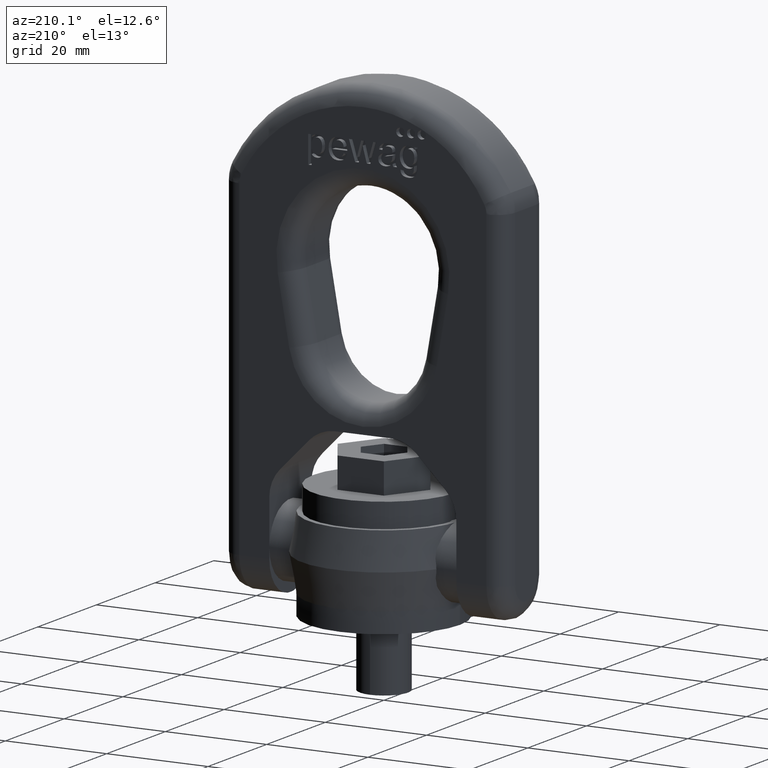
[diagram: clean part render]
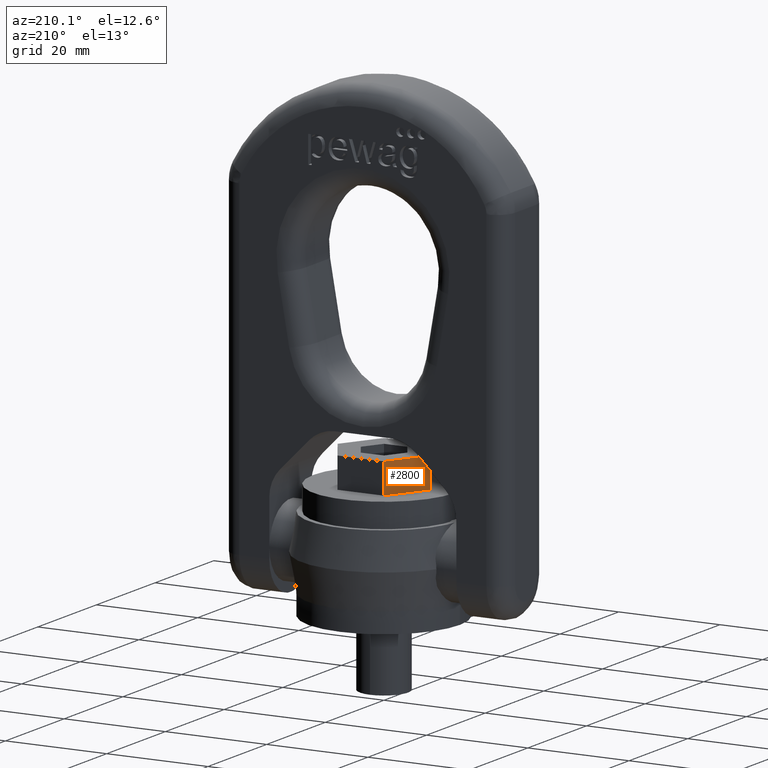
[diagram: same view with one face highlighted and labeled with its STEP entity id]
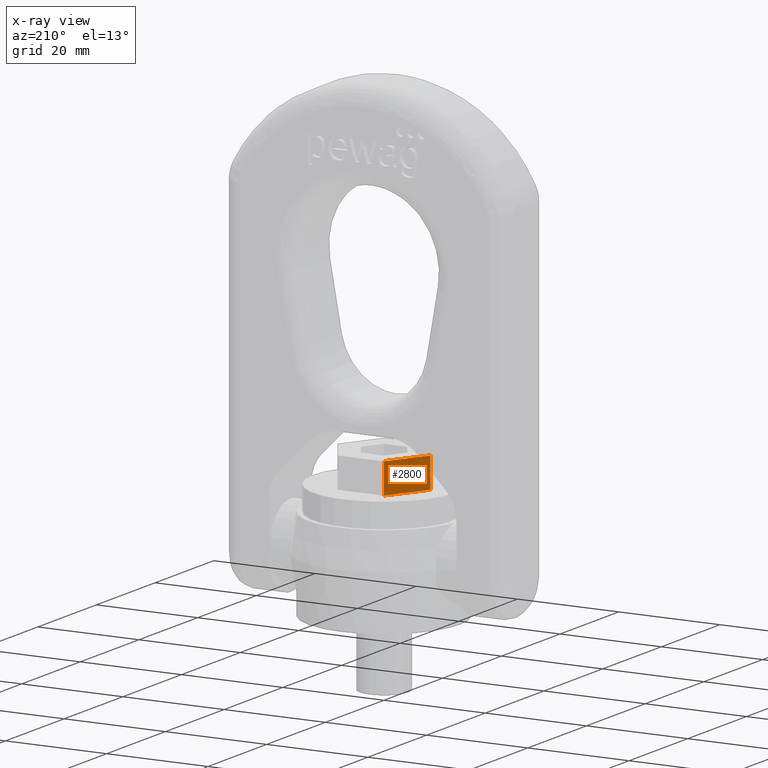
[diagram: x-ray of the same camera — body ghosted, the highlighted face saturated]
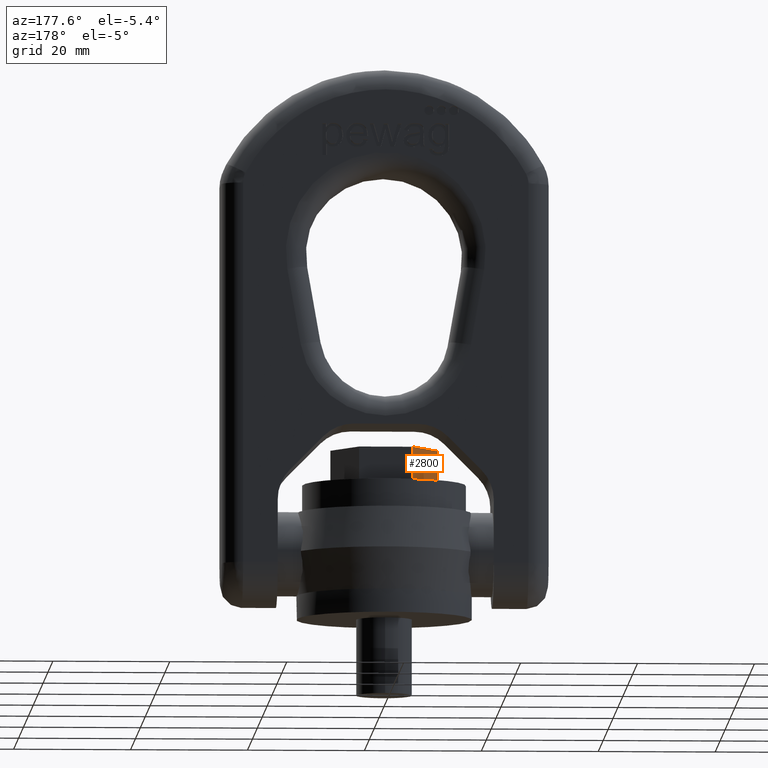
[diagram: same view with one face highlighted and labeled with its STEP entity id]
A machine part, auxiliary view. The second image highlights one B-rep face of the part: STEP entity #2800.
The next image is the same camera in x-ray: the body ghosted, the highlighted face saturated — about 0% of this face is hidden behind the body in this view.
A second angle (auxiliary view) of the same face is appended — the face is thin or edge-on in the first view.
In plain terms, the highlighted planar face has unit normal (0.866, -0.5, 0).
Its self-contained STEP definition (entity closure, byte-faithful):
#1730=LINE('',#6964,#2038);
#1737=LINE('',#6978,#2045);
#1744=LINE('',#6992,#2052);
#1746=LINE('',#6996,#2054);
#2038=VECTOR('',#6099,1.);
#2045=VECTOR('',#6108,1.);
#2052=VECTOR('',#6123,1.);
#2054=VECTOR('',#6127,1.);
#2443=FACE_OUTER_BOUND('',#3159,.T.);
#2674=PLANE('',#5850);
#2800=ADVANCED_FACE('',(#2443),#2674,.F.);
#3159=EDGE_LOOP('',(#3475,#3476,#3477,#3478));
#3475=ORIENTED_EDGE('',*,*,#5126,.T.);
#3476=ORIENTED_EDGE('',*,*,#5133,.F.);
#3477=ORIENTED_EDGE('',*,*,#5142,.F.);
#3478=ORIENTED_EDGE('',*,*,#5140,.T.);
#4705=VERTEX_POINT('',#6962);
#4707=VERTEX_POINT('',#6965);
#4712=VERTEX_POINT('',#6977);
#4716=VERTEX_POINT('',#6993);
#5126=EDGE_CURVE('',#4707,#4705,#1730,.T.);
#5133=EDGE_CURVE('',#4712,#4705,#1737,.T.);
#5140=EDGE_CURVE('',#4716,#4707,#1744,.T.);
#5142=EDGE_CURVE('',#4716,#4712,#1746,.T.);
#5850=AXIS2_PLACEMENT_3D('',#6997,#6128,#6129);
#6099=DIRECTION('',(-0.5,-0.866025403784438,0.));
#6108=DIRECTION('',(0.,0.,-1.));
#6123=DIRECTION('',(0.,0.,-1.));
#6127=DIRECTION('',(-0.5,-0.866025403784438,0.));
#6128=DIRECTION('',(0.866025403784439,-0.5,0.));
#6129=DIRECTION('',(0.5,0.866025403784439,0.));
#6962=CARTESIAN_POINT('',(-9.16832227473126,0.,23.));
#6964=CARTESIAN_POINT('',(-4.58416113736563,7.94,23.));
#6965=CARTESIAN_POINT('',(-4.58416113736563,7.94,23.));
#6977=CARTESIAN_POINT('',(-9.16832227473126,0.,29.));
#6978=CARTESIAN_POINT('',(-9.16832227473126,0.,29.));
#6992=CARTESIAN_POINT('',(-4.58416113736563,7.94,29.));
#6993=CARTESIAN_POINT('',(-4.58416113736563,7.94,29.));
#6996=CARTESIAN_POINT('',(-4.58416113736563,7.94,29.));
#6997=CARTESIAN_POINT('',(-4.58416113736563,7.94,29.));